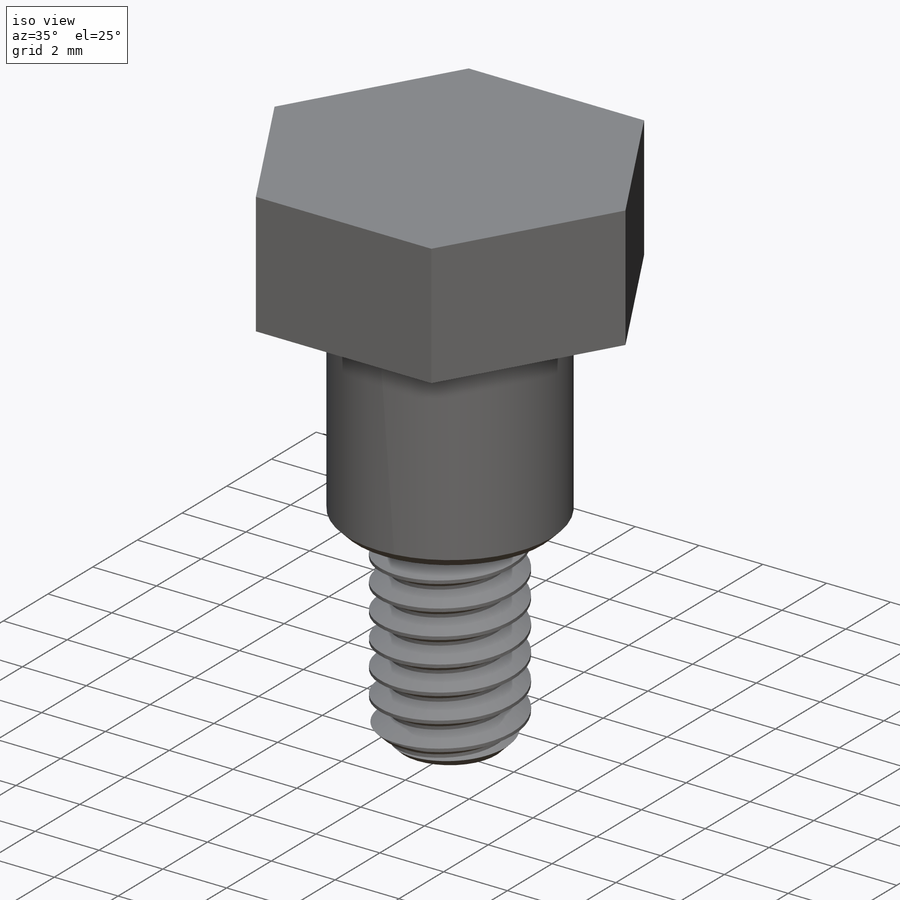
[diagram: iso view]
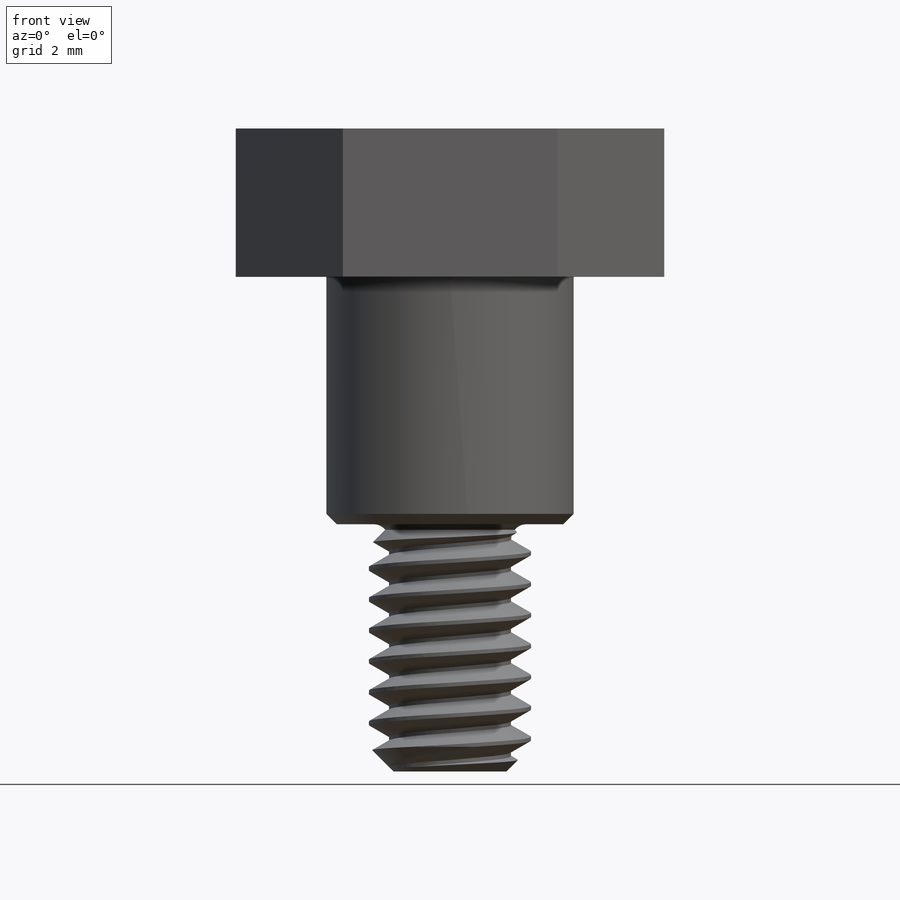
[diagram: front view]
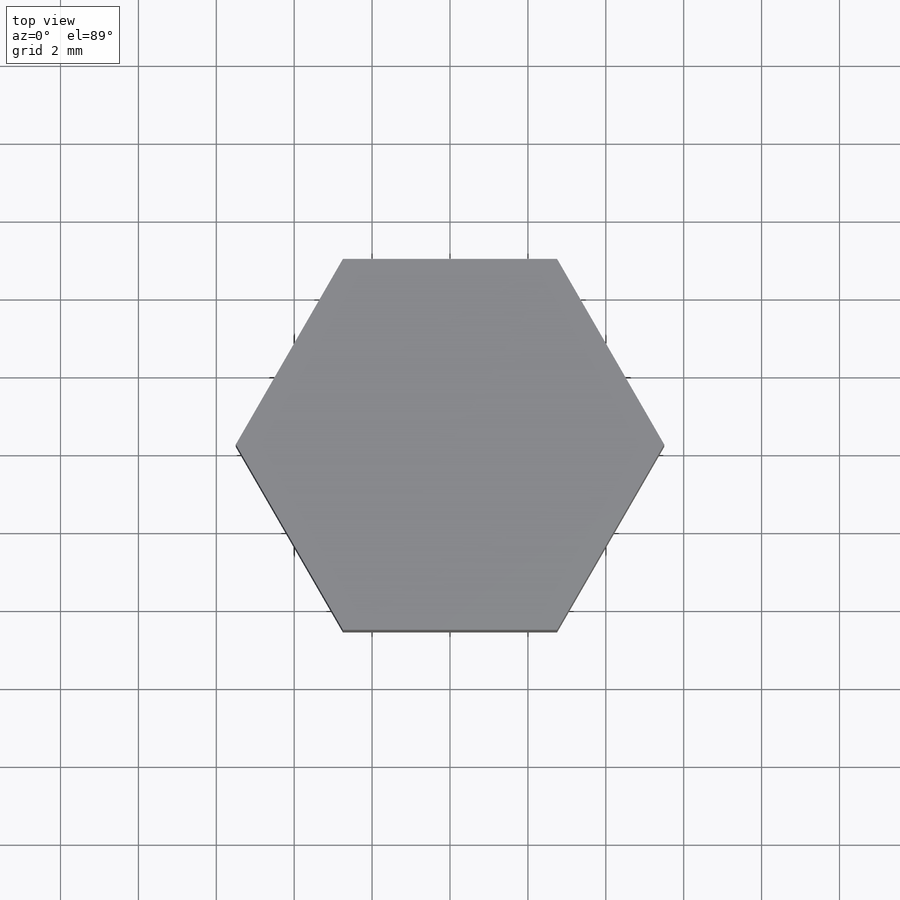
[diagram: top view]
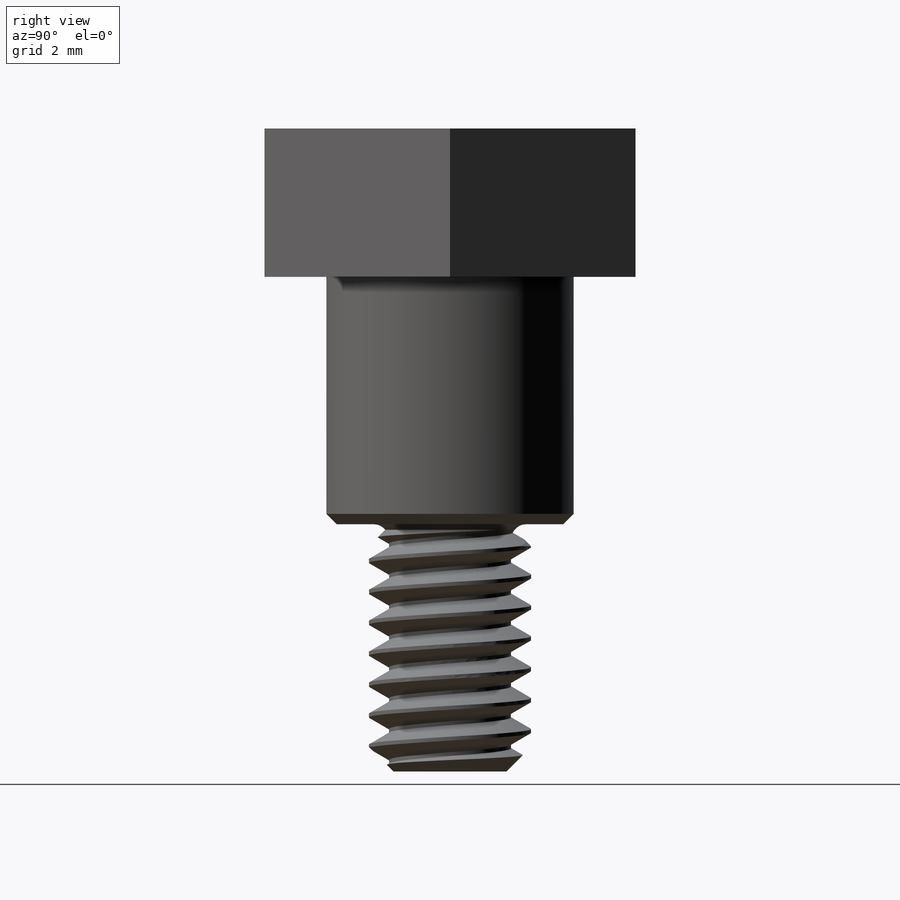
[diagram: right view]
SOLIDWORKS PART (.sldprt)
format: sldprt  version: not decoded by parser v0  size: 710,656 bytes
history: native  units: mm
features: sketch x8, extrude x3, chamfer x2, material x1, helix x1, sweep x1, plane x1, cut_revolve x1, fillet x1 (+11 scaffold rows collapsed)
feature tree (30):
  scaffold x11  (default folders/planes/origin — collapsed)
  material  "Polyetheretherketone (PEEK)"
  sketch  "Sketch1"  dims[Head Dia=7.9375mm D1=~3.96875mm D2=~3.96875mm]
  extrude  "Extrude1"  Depth=3.81mm Head Ht=3.81mm
  sketch  "Sketch4"  dims[Shoulder Dia=6.35mm]
  extrude  "Extrude2"  Depth=6.35mm Shoulder Length=6.35mm
  chamfer  "Chamfer2"  Distance=0.264583mm Angle=45deg
  sketch  "Sketch5"  dims[Thread Dia=4.1656mm]
  extrude  "Extrude3"  Depth=6.35mm Thread Length=6.35mm
  chamfer  "Chamfer1"  Distance=0.635mm Angle=45deg
  sketch  "Sketch12"
  helix  "Helix/Spiral1"  Pitch=6.35mm Thread Pitch =0.79375mm
  sketch  "Sketch13"  dims[c1.D1=~1.910764mm c2.D1=60.0deg c2.D2=~0.099219mm c2.D3=~0.396875mm]
  sweep  "Cut-Sweep1"
  plane  "Plane1"  Offset=2.54mm
  sketch  "Sketch15"  dims[D1=~2.182812mm]
  sketch  "Sketch16"  dims[c1.D1=~0.049609mm c1.D2=2.54mm c2.D2=45.0deg]
  cut_revolve  "Cut-Revolve8"  Angle=360deg
  fillet  "Fillet1"  Radius=0.396875mm
  sketch  "Sketch18"  dims[c1.D1=0.508mm c1.D2=5.08mm c1.D3=6.35mm c1.D4=10.16mm c2.D1=~6.10108mm]
decode coverage: 15 of 17 modeling features carry decoded parameters
note: ~ marks probable driven/reference dimensions
note: suppression state not decoded; provenance and decode notes live in map.json
